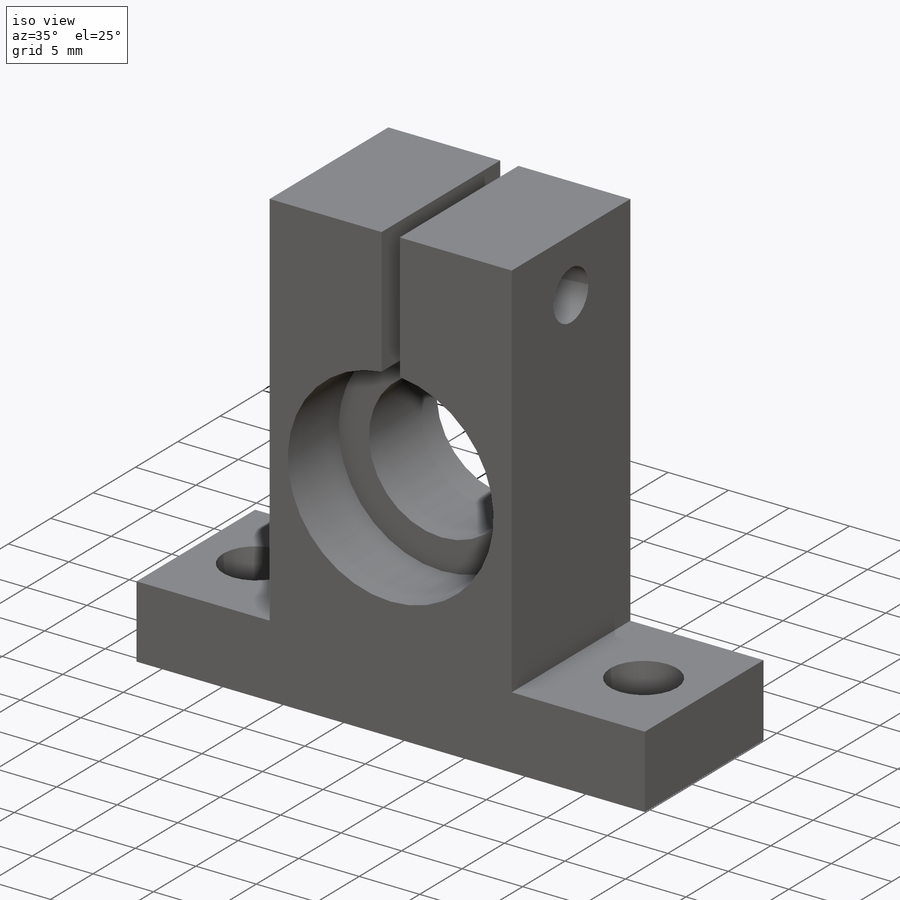
[diagram: iso view]
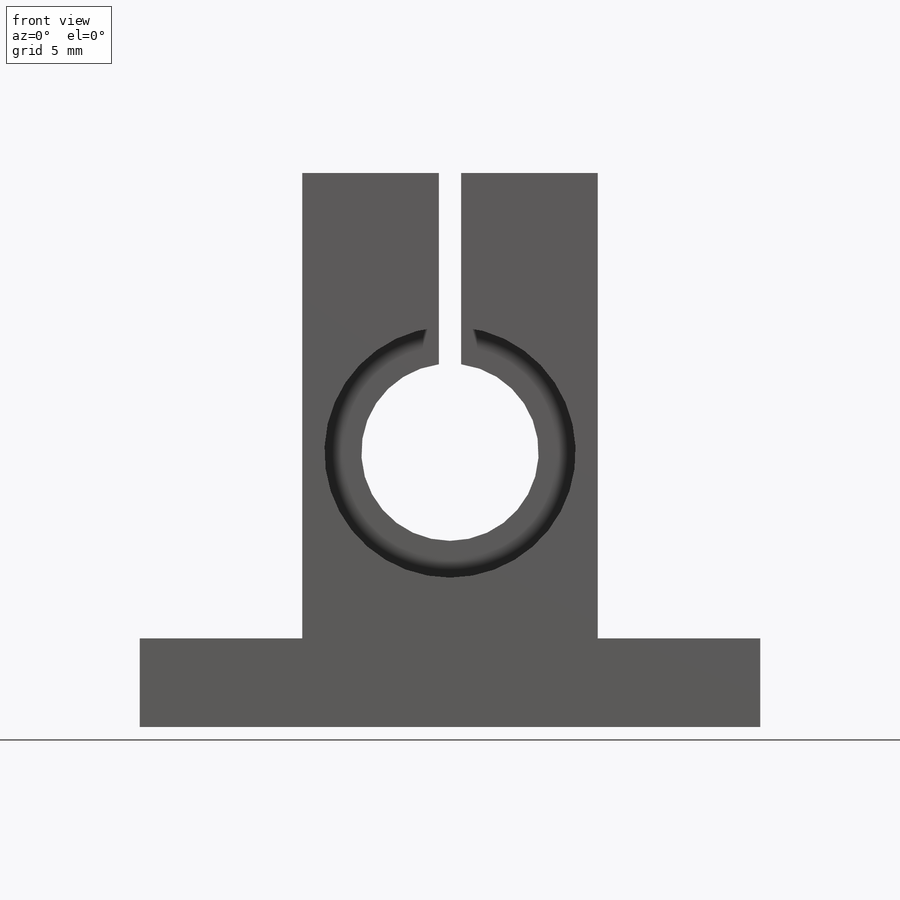
[diagram: front view]
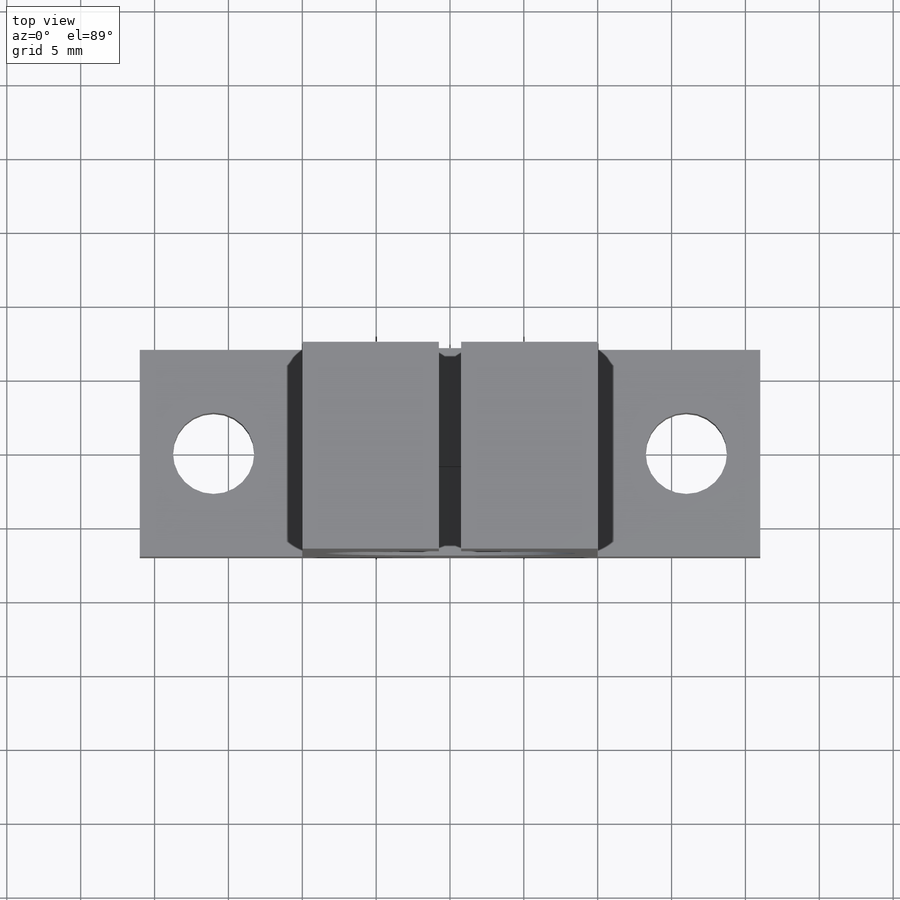
[diagram: top view]
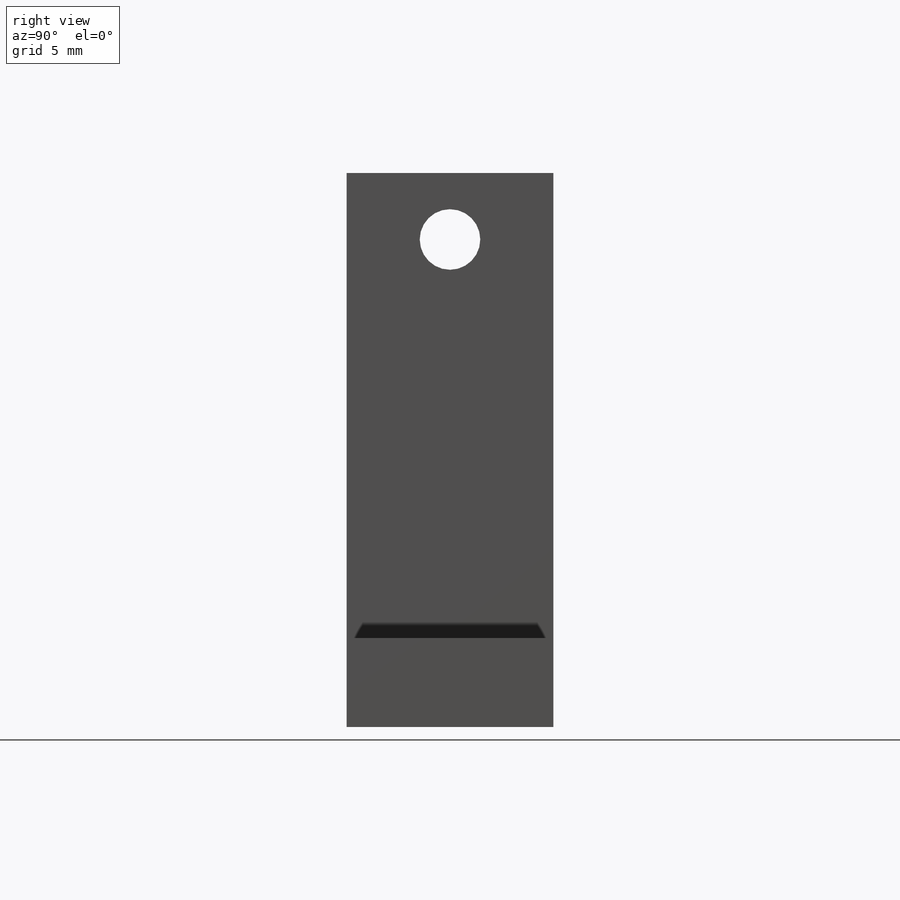
[diagram: right view]
SOLIDWORKS PART (.sldprt)
format: sldprt  version: not decoded by parser v0  size: 207,360 bytes
history: native  units: mm
features: sketch x6, cut_extrude x5, material x1, extrude x1, mirror x1 (+11 scaffold rows collapsed)
feature tree (25):
  scaffold x11  (default folders/planes/origin — collapsed)
  material  "Material <not specified>"
  sketch  "Sketch1"  dims[c1.D1=21.0mm c1.D2=21.0mm c2.D1=37.5mm c2.D2=6.0mm c2.D3=21.0mm c2.D4=10.0mm]
  extrude  "Boss-Extrude1"  Depth=14mm
  mirror  "Mirror1"
  sketch  "Sketch2"  dims[D1=12.0mm D2=18.6mm]
  cut_extrude  "Cut-Extrude1"  [1 undecoded]
  sketch  "Sketch3"  dims[D2=4.1mm D1=4.5mm]
  cut_extrude  "Cut-Extrude2"  [1 undecoded]
  sketch  "Sketch4"  dims[D2=5.5mm D3=5.5mm D1=16.0mm D4=16.0mm]
  cut_extrude  "Cut-Extrude3"  Depth=14mm
  sketch  "Sketch5"  dims[c1.D1=1.5mm c1.D2=~28.997347mm c2.D2=90.0deg]
  cut_extrude  "Cut-Extrude4"  [1 undecoded]
  sketch  "Sketch6"  dims[D1=17.0mm]
  cut_extrude  "Cut-Extrude5"  Depth=6mm
decode coverage: 9 of 13 modeling features carry decoded parameters
note: ~ marks probable driven/reference dimensions
note: 3 parameter values undecoded
summary: no parameter record found for 3 features
note: suppression state not decoded; provenance and decode notes live in map.json
